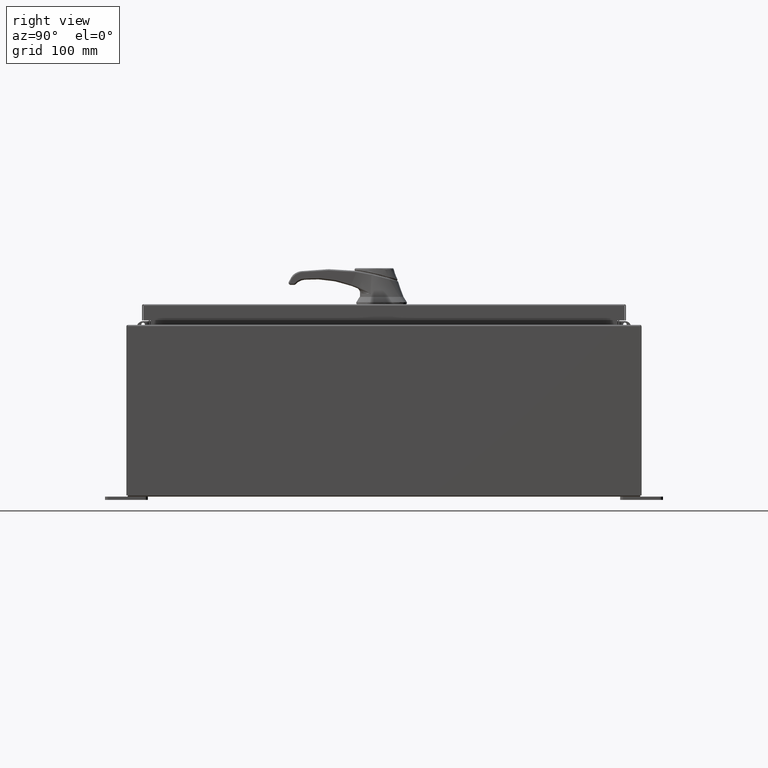
[diagram: clean part render]
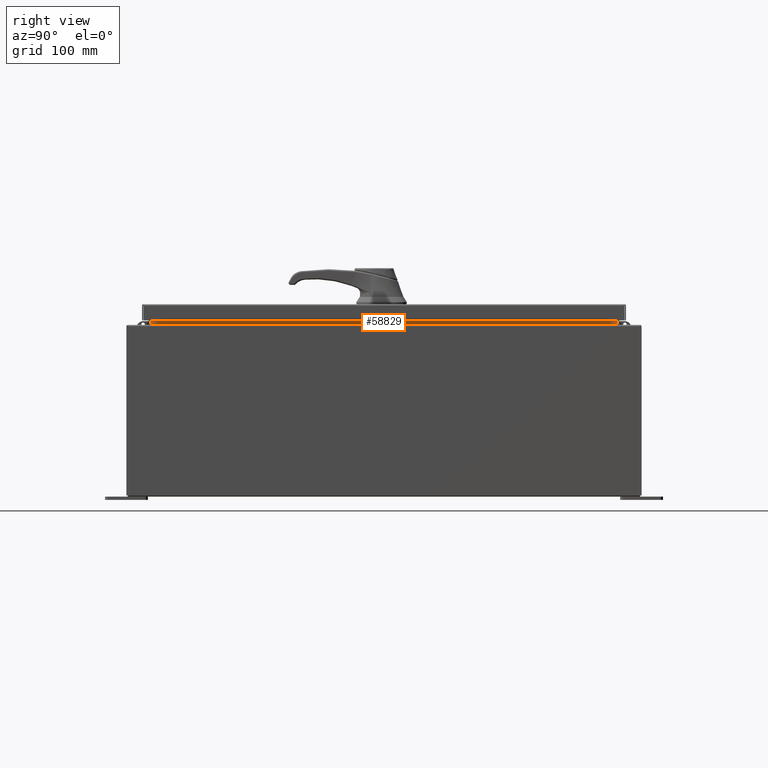
[diagram: same view with one face highlighted and labeled with its STEP entity id]
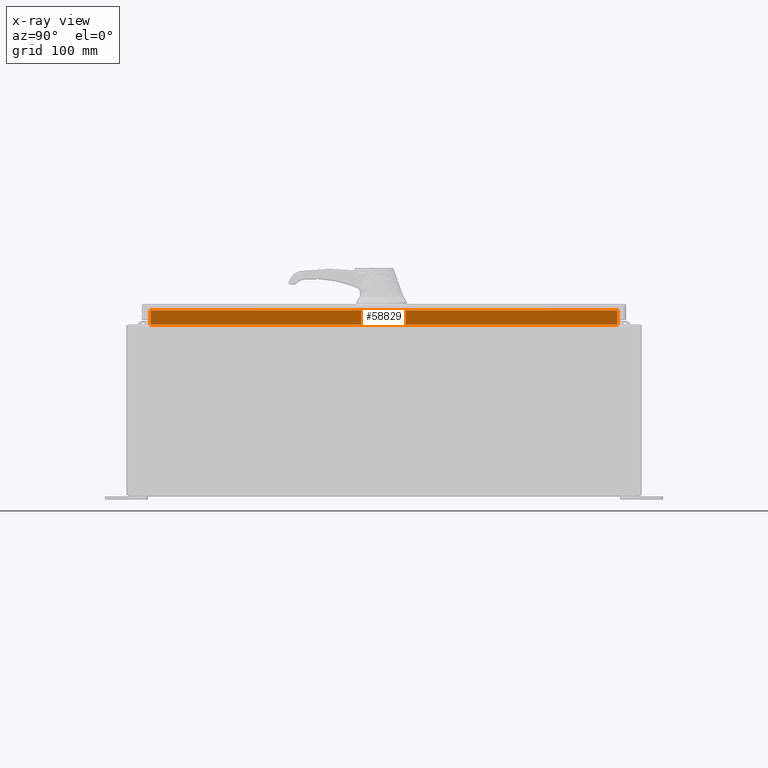
[diagram: x-ray of the same camera — body ghosted, the highlighted face saturated]
A machine part, right view. The second image highlights one B-rep face of the part: STEP entity #58829.
The next image is the same camera in x-ray: the body ghosted, the highlighted face saturated — about 0% of this face is hidden behind the body in this view.
In plain terms, the highlighted planar face has unit normal (1, 0, -0).
Its self-contained STEP definition (entity closure, byte-faithful):
#3698 = PLANE ( 'NONE',  #110910 ) ;
#6815 = CARTESIAN_POINT ( 'NONE',  ( 10.69970000000003200, -13.59375000000000000, 9.938300000000010600 ) ) ;
#7437 = CARTESIAN_POINT ( 'NONE',  ( 10.69970000000003400, -13.59374999999999800, 10.85060000000001100 ) ) ;
#10574 = LINE ( 'NONE', #90749, #103997 ) ;
#12525 = CARTESIAN_POINT ( 'NONE',  ( 10.69970000000003400, 13.59374999999999800, 9.938300000000008800 ) ) ;
#12594 = EDGE_CURVE ( 'NONE', #43563, #101853, #90717, .T. ) ;
#12763 = DIRECTION ( 'NONE',  ( 1.000000000000000000, 0.0000000000000000000, -2.361913319930193300E-015 ) ) ;
#22040 = EDGE_CURVE ( 'NONE', #99240, #43563, #10574, .T. ) ;
#27440 = DIRECTION ( 'NONE',  ( -2.361913319930193300E-015, -0.0000000000000000000, -1.000000000000000000 ) ) ;
#30669 = ORIENTED_EDGE ( 'NONE', *, *, #22040, .F. ) ;
#30842 = LINE ( 'NONE', #56946, #81793 ) ;
#35605 = CARTESIAN_POINT ( 'NONE',  ( 10.69970000000003400, -13.59374999999999800, 10.76290000000001100 ) ) ;
#42994 = EDGE_LOOP ( 'NONE', ( #30669, #43476, #71770, #50898 ) ) ;
#43476 = ORIENTED_EDGE ( 'NONE', *, *, #54399, .F. ) ;
#43563 = VERTEX_POINT ( 'NONE', #49772 ) ;
#49772 = CARTESIAN_POINT ( 'NONE',  ( 10.69970000000003200, 13.59375000000000000, 9.938300000000010600 ) ) ;
#50898 = ORIENTED_EDGE ( 'NONE', *, *, #12594, .F. ) ;
#53044 = FACE_OUTER_BOUND ( 'NONE', #42994, .T. ) ;
#54399 = EDGE_CURVE ( 'NONE', #54735, #99240, #30842, .T. ) ;
#54735 = VERTEX_POINT ( 'NONE', #35605 ) ;
#56946 = CARTESIAN_POINT ( 'NONE',  ( 10.69970000000003200, -13.59374999999999300, 10.76290000000001100 ) ) ;
#58829 = ADVANCED_FACE ( 'NONE', ( #53044 ), #3698, .T. ) ;
#66054 = VECTOR ( 'NONE', #90514, 39.37007874015748100 ) ;
#66873 = CARTESIAN_POINT ( 'NONE',  ( 10.69970000000000900, 0.0000000000000000000, -2.527176394925710600E-014 ) ) ;
#71770 = ORIENTED_EDGE ( 'NONE', *, *, #91110, .F. ) ;
#76006 = DIRECTION ( 'NONE',  ( -2.361913319930193300E-015, 0.0000000000000000000, -1.000000000000000000 ) ) ;
#81793 = VECTOR ( 'NONE', #90335, 39.37007874015748100 ) ;
#84865 = DIRECTION ( 'NONE',  ( 8.038541222736223700E-017, -1.000000000000000000, 2.411562366820867200E-016 ) ) ;
#90172 = LINE ( 'NONE', #7437, #66054 ) ;
#90335 = DIRECTION ( 'NONE',  ( 0.0000000000000000000, 1.000000000000000000, 0.0000000000000000000 ) ) ;
#90514 = DIRECTION ( 'NONE',  ( 2.361913319930198800E-015, -0.0000000000000000000, 1.000000000000000000 ) ) ;
#90717 = LINE ( 'NONE', #12525, #96393 ) ;
#90749 = CARTESIAN_POINT ( 'NONE',  ( 10.69970000000003200, 13.59374999999999800, 9.925300000000008900 ) ) ;
#91110 = EDGE_CURVE ( 'NONE', #101853, #54735, #90172, .T. ) ;
#96393 = VECTOR ( 'NONE', #84865, 39.37007874015748100 ) ;
#99240 = VERTEX_POINT ( 'NONE', #100314 ) ;
#100314 = CARTESIAN_POINT ( 'NONE',  ( 10.69970000000003200, 13.59374999999999300, 10.76290000000001100 ) ) ;
#101853 = VERTEX_POINT ( 'NONE', #6815 ) ;
#103997 = VECTOR ( 'NONE', #27440, 39.37007874015748100 ) ;
#110910 = AXIS2_PLACEMENT_3D ( 'NONE', #66873, #12763, #76006 ) ;